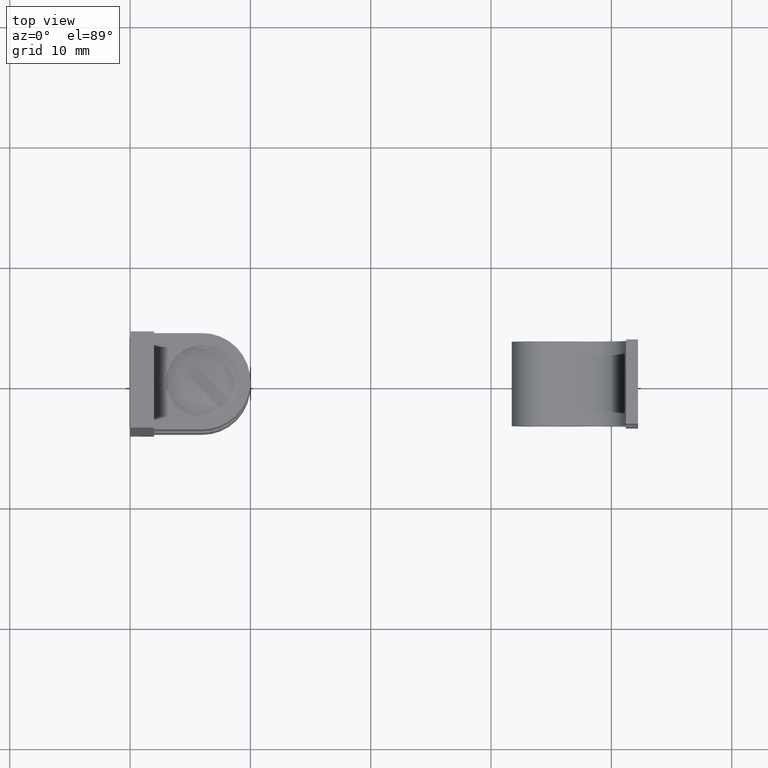
[diagram: clean part render]
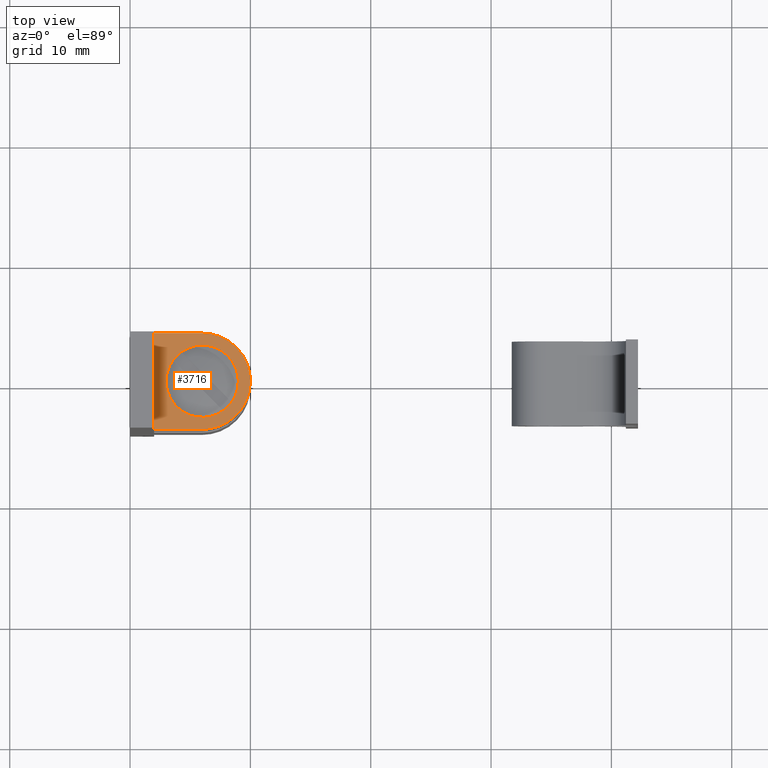
[diagram: same view with one face highlighted and labeled with its STEP entity id]
A machine part, top view. The second image highlights one B-rep face of the part: STEP entity #3716.
In plain terms, the highlighted face is a freeform B-spline surface patch.
Its self-contained STEP definition (entity closure, byte-faithful):
#3005=CARTESIAN_POINT('',(6.183145618635155,-2.994404395263730,13.300000000000001));
#3006=VERTEX_POINT('',#3005);
#3012=CARTESIAN_POINT('',(9.000000000000002,0.0,13.300000000000001));
#3013=VERTEX_POINT('',#3012);
#3014=CARTESIAN_POINT('',(9.000000000000002,0.0,13.300000000000001));
#3015=CARTESIAN_POINT('',(9.0,-2.822118200659323,13.299999999999997));
#3016=CARTESIAN_POINT('',(6.183145618635155,-2.994404395263729,13.299999999999997));
#3024=(BOUNDED_CURVE()B_SPLINE_CURVE(2,(#3014,#3015,#3016),.UNSPECIFIED.,.F.,.U.)B_SPLINE_CURVE_WITH_KNOTS((3,3),(0.500000000000000,0.739332962238443),.UNSPECIFIED.)CURVE()GEOMETRIC_REPRESENTATION_ITEM()RATIONAL_B_SPLINE_CURVE((1.0,0.719603993287296,0.976072041665647))REPRESENTATION_ITEM(''));
#3025=EDGE_CURVE('',#3013,#3006,#3024,.T.);
#3027=CARTESIAN_POINT('',(5.645897295854574,2.979028579070180,13.300000000000001));
#3028=VERTEX_POINT('',#3027);
#3029=CARTESIAN_POINT('',(5.645897295854574,2.979028579070180,13.300000000000004));
#3030=CARTESIAN_POINT('',(5.822327640867270,3.0,13.300000000000006));
#3031=CARTESIAN_POINT('',(6.0,3.0,13.300000000000001));
#3032=CARTESIAN_POINT('',(9.000000000000002,3.0,13.299999999999997));
#3033=CARTESIAN_POINT('',(9.000000000000002,0.0,13.300000000000001));
#3041=(BOUNDED_CURVE()B_SPLINE_CURVE(2,(#3029,#3030,#3031,#3032,#3033),.UNSPECIFIED.,.F.,.U.)B_SPLINE_CURVE_WITH_KNOTS((3,2,3),(0.229562473495772,0.250000000000000,0.500000000000000),.UNSPECIFIED.)CURVE()GEOMETRIC_REPRESENTATION_ITEM()RATIONAL_B_SPLINE_CURVE((0.956026754148934,0.976055948310365,1.0,0.707106781186548,1.0))REPRESENTATION_ITEM(''));
#3042=EDGE_CURVE('',#3028,#3013,#3041,.T.);
#3086=CARTESIAN_POINT('',(3.0,0.0,13.300000000000001));
#3087=VERTEX_POINT('',#3086);
#3088=CARTESIAN_POINT('',(3.0,0.0,13.300000000000001));
#3089=CARTESIAN_POINT('',(3.000000000000001,2.664523577538581,13.299999999999999));
#3090=CARTESIAN_POINT('',(5.645897295854574,2.979028579070180,13.299999999999994));
#3098=(BOUNDED_CURVE()B_SPLINE_CURVE(2,(#3088,#3089,#3090),.UNSPECIFIED.,.F.,.U.)B_SPLINE_CURVE_WITH_KNOTS((3,3),(0.0,0.229562473495771),.UNSPECIFIED.)CURVE()GEOMETRIC_REPRESENTATION_ITEM()RATIONAL_B_SPLINE_CURVE((1.0,0.731050832876183,0.956026754148934))REPRESENTATION_ITEM(''));
#3099=EDGE_CURVE('',#3087,#3028,#3098,.T.);
#3101=CARTESIAN_POINT('',(6.183145618635155,-2.994404395263730,13.300000000000001));
#3102=CARTESIAN_POINT('',(6.091658289926437,-3.0,13.299999999999995));
#3103=CARTESIAN_POINT('',(6.0,-3.0,13.300000000000001));
#3104=CARTESIAN_POINT('',(3.0,-3.0,13.299999999999997));
#3105=CARTESIAN_POINT('',(3.0,0.0,13.300000000000001));
#3113=(BOUNDED_CURVE()B_SPLINE_CURVE(2,(#3101,#3102,#3103,#3104,#3105),.UNSPECIFIED.,.F.,.U.)B_SPLINE_CURVE_WITH_KNOTS((3,2,3),(0.739332962238443,0.750000000000000,1.0),.UNSPECIFIED.)CURVE()GEOMETRIC_REPRESENTATION_ITEM()RATIONAL_B_SPLINE_CURVE((0.976072041665647,0.987502787899252,1.0,0.707106781186548,1.0))REPRESENTATION_ITEM(''));
#3114=EDGE_CURVE('',#3006,#3087,#3113,.T.);
#3528=CARTESIAN_POINT('',(2.0,4.0,13.300000000000001));
#3529=VERTEX_POINT('',#3528);
#3535=CARTESIAN_POINT('',(6.0,4.0,13.300000000000001));
#3536=VERTEX_POINT('',#3535);
#3537=CARTESIAN_POINT('',(2.0,4.0,13.300000000000001));
#3538=CARTESIAN_POINT('',(6.0,4.0,13.300000000000001));
#3539=QUASI_UNIFORM_CURVE('',1,(#3537,#3538),.UNSPECIFIED.,.F.,.U.);
#3540=EDGE_CURVE('',#3529,#3536,#3539,.T.);
#3600=CARTESIAN_POINT('',(6.0,-4.0,13.300000000000001));
#3601=VERTEX_POINT('',#3600);
#3602=CARTESIAN_POINT('',(6.0,4.0,13.300000000000001));
#3603=CARTESIAN_POINT('',(10.000000000000002,4.000000000000000,13.299999999999997));
#3604=CARTESIAN_POINT('',(10.0,0.0,13.300000000000001));
#3605=CARTESIAN_POINT('',(10.000000000000002,-4.000000000000000,13.299999999999997));
#3606=CARTESIAN_POINT('',(6.0,-4.0,13.300000000000001));
#3614=(BOUNDED_CURVE()B_SPLINE_CURVE(2,(#3602,#3603,#3604,#3605,#3606),.UNSPECIFIED.,.F.,.U.)B_SPLINE_CURVE_WITH_KNOTS((3,2,3),(0.0,0.500000000000000,1.0),.UNSPECIFIED.)CURVE()GEOMETRIC_REPRESENTATION_ITEM()RATIONAL_B_SPLINE_CURVE((1.0,0.707106781186548,1.0,0.707106781186548,1.0))REPRESENTATION_ITEM(''));
#3615=EDGE_CURVE('',#3536,#3601,#3614,.T.);
#3648=CARTESIAN_POINT('',(2.0,-4.0,13.300000000000001));
#3649=VERTEX_POINT('',#3648);
#3650=CARTESIAN_POINT('',(2.0,-4.0,13.300000000000001));
#3651=CARTESIAN_POINT('',(6.0,-4.0,13.300000000000001));
#3652=QUASI_UNIFORM_CURVE('',1,(#3650,#3651),.UNSPECIFIED.,.F.,.U.);
#3653=EDGE_CURVE('',#3649,#3601,#3652,.T.);
#3695=CARTESIAN_POINT('',(1.600400015505557,-4.399599984494448,13.300000000000001));
#3696=CARTESIAN_POINT('',(10.399600199071070,-4.399599984494448,13.300000000000001));
#3697=CARTESIAN_POINT('',(1.600400015505557,4.399600199071169,13.300000000000001));
#3698=CARTESIAN_POINT('',(10.399600199071070,4.399600199071169,13.300000000000001));
#3699=B_SPLINE_SURFACE_WITH_KNOTS('',1,1,((#3695,#3697),(#3696,#3698)),.UNSPECIFIED.,.F.,.F.,.U.,(2,2),(2,2),(0.0,8.799200183565510),(0.0,8.799200183565617),.UNSPECIFIED.);
#3700=ORIENTED_EDGE('',*,*,#3615,.F.);
#3701=ORIENTED_EDGE('',*,*,#3540,.F.);
#3702=CARTESIAN_POINT('',(2.0,-4.0,13.300000000000001));
#3703=CARTESIAN_POINT('',(2.0,4.0,13.300000000000001));
#3704=QUASI_UNIFORM_CURVE('',1,(#3702,#3703),.UNSPECIFIED.,.F.,.U.);
#3705=EDGE_CURVE('',#3649,#3529,#3704,.T.);
#3706=ORIENTED_EDGE('',*,*,#3705,.F.);
#3707=ORIENTED_EDGE('',*,*,#3653,.T.);
#3708=EDGE_LOOP('',(#3700,#3701,#3706,#3707));
#3709=FACE_OUTER_BOUND('',#3708,.T.);
#3710=ORIENTED_EDGE('',*,*,#3025,.T.);
#3711=ORIENTED_EDGE('',*,*,#3114,.T.);
#3712=ORIENTED_EDGE('',*,*,#3099,.T.);
#3713=ORIENTED_EDGE('',*,*,#3042,.T.);
#3714=EDGE_LOOP('',(#3710,#3711,#3712,#3713));
#3715=FACE_BOUND('',#3714,.T.);
#3716=ADVANCED_FACE('',(#3709,#3715),#3699,.T.);